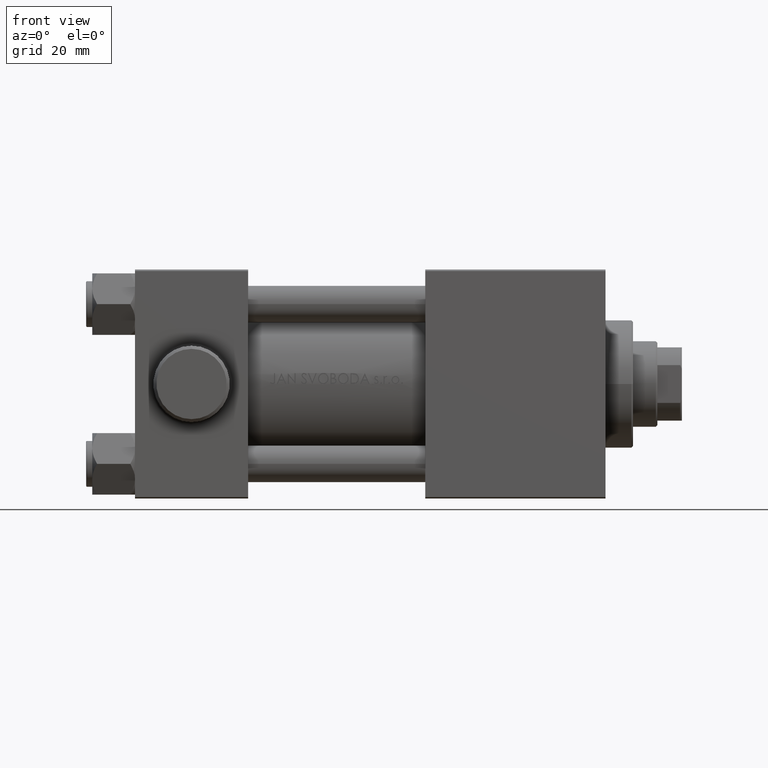
[diagram: clean part render]
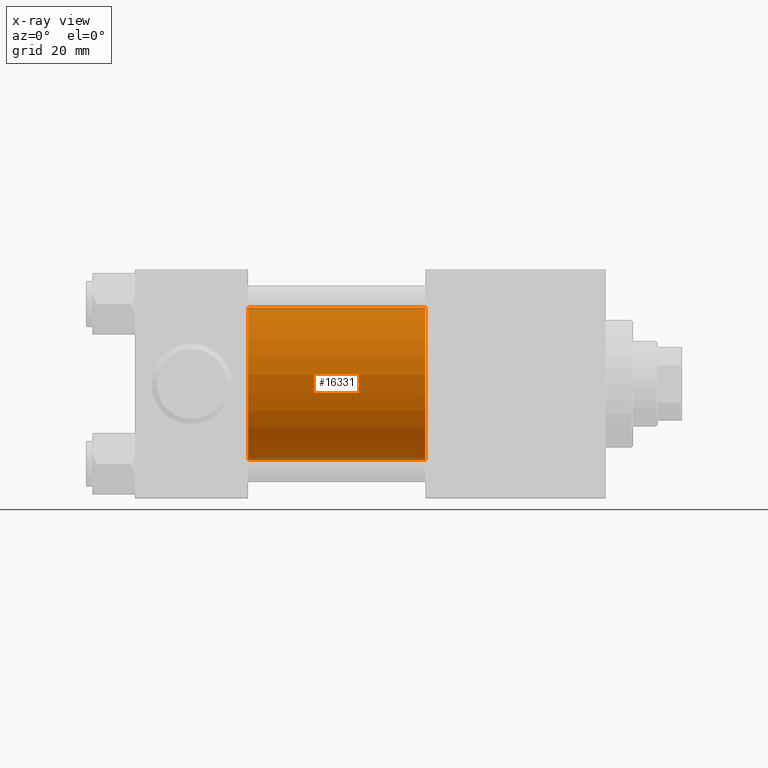
[diagram: x-ray — body ghosted, one internal face saturated and labeled with its STEP entity id]
A machine part, front view, then the same camera in x-ray: the body is ghosted and one INTERNAL B-rep face — a face not visible from any outside direction — is saturated and labeled: STEP entity #16331.
In plain terms, the highlighted cylindrical surface (partial cylindrical patch) has radius 25 mm, axis along (-1, -0, -0).
Its self-contained STEP definition (entity closure, byte-faithful):
#703 = ORIENTED_EDGE ( 'NONE', *, *, #44233, .T. ) ;
#1523 = VERTEX_POINT ( 'NONE', #28815 ) ;
#2159 = ORIENTED_EDGE ( 'NONE', *, *, #23351, .T. ) ;
#3514 = DIRECTION ( 'NONE',  ( -1.000000000000000000, -0.000000000000000000, -0.000000000000000000 ) ) ;
#4877 = CARTESIAN_POINT ( 'NONE',  ( 37.00000000000000000, -3.469446951953614189E-15, 0.000000000000000000 ) ) ;
#5646 = CARTESIAN_POINT ( 'NONE',  ( 95.00000000000000000, -3.469446951953614189E-15, 25.00000000000000000 ) ) ;
#7779 = CARTESIAN_POINT ( 'NONE',  ( 95.00000000000000000, -3.469446951953614189E-15, 0.000000000000000000 ) ) ;
#7964 = CARTESIAN_POINT ( 'NONE',  ( 95.00000000000000000, -3.469446951953614189E-15, 0.000000000000000000 ) ) ;
#8915 = VECTOR ( 'NONE', #3514, 1000.000000000000000 ) ;
#9564 = ORIENTED_EDGE ( 'NONE', *, *, #17824, .F. ) ;
#12575 = DIRECTION ( 'NONE',  ( 1.000000000000000000, 0.000000000000000000, 0.000000000000000000 ) ) ;
#13205 = CARTESIAN_POINT ( 'NONE',  ( 37.00000000000000000, -3.469446951953614189E-15, 25.00000000000000000 ) ) ;
#16331 = ADVANCED_FACE ( 'NONE', ( #22455 ), #32514, .F. ) ;
#17137 = VERTEX_POINT ( 'NONE', #13205 ) ;
#17824 = EDGE_CURVE ( 'NONE', #17137, #1523, #37978, .T. ) ;
#17851 = DIRECTION ( 'NONE',  ( 1.000000000000000000, 0.000000000000000000, 0.000000000000000000 ) ) ;
#18387 = ORIENTED_EDGE ( 'NONE', *, *, #19613, .F. ) ;
#19613 = EDGE_CURVE ( 'NONE', #34180, #17137, #45871, .T. ) ;
#20205 = VECTOR ( 'NONE', #40446, 1000.000000000000000 ) ;
#20371 = CIRCLE ( 'NONE', #26338, 25.00000000000000000 ) ;
#22455 = FACE_OUTER_BOUND ( 'NONE', #43987, .T. ) ;
#23351 = EDGE_CURVE ( 'NONE', #45735, #1523, #30375, .T. ) ;
#24564 = CARTESIAN_POINT ( 'NONE',  ( 95.00000000000000000, -3.469446951953614189E-15, 25.00000000000000000 ) ) ;
#26338 = AXIS2_PLACEMENT_3D ( 'NONE', #7779, #17851, #28610 ) ;
#28474 = CARTESIAN_POINT ( 'NONE',  ( 95.00000000000000000, -4.078299540852317872E-16, -25.00000000000000000 ) ) ;
#28610 = DIRECTION ( 'NONE',  ( 0.000000000000000000, 0.000000000000000000, -1.000000000000000000 ) ) ;
#28815 = CARTESIAN_POINT ( 'NONE',  ( 37.00000000000000000, -4.078299540852317872E-16, -25.00000000000000000 ) ) ;
#30375 = LINE ( 'NONE', #33653, #20205 ) ;
#32514 = CYLINDRICAL_SURFACE ( 'NONE', #40927, 25.00000000000000000 ) ;
#32735 = DIRECTION ( 'NONE',  ( -1.000000000000000000, -0.000000000000000000, -0.000000000000000000 ) ) ;
#33429 = DIRECTION ( 'NONE',  ( 0.000000000000000000, 0.000000000000000000, 1.000000000000000000 ) ) ;
#33653 = CARTESIAN_POINT ( 'NONE',  ( 95.00000000000000000, -4.078299540852317872E-16, -25.00000000000000000 ) ) ;
#34180 = VERTEX_POINT ( 'NONE', #5646 ) ;
#37978 = CIRCLE ( 'NONE', #39487, 25.00000000000000000 ) ;
#39487 = AXIS2_PLACEMENT_3D ( 'NONE', #4877, #12575, #40867 ) ;
#40446 = DIRECTION ( 'NONE',  ( -1.000000000000000000, -0.000000000000000000, -0.000000000000000000 ) ) ;
#40867 = DIRECTION ( 'NONE',  ( 0.000000000000000000, 0.000000000000000000, -1.000000000000000000 ) ) ;
#40927 = AXIS2_PLACEMENT_3D ( 'NONE', #7964, #32735, #33429 ) ;
#43987 = EDGE_LOOP ( 'NONE', ( #703, #2159, #9564, #18387 ) ) ;
#44233 = EDGE_CURVE ( 'NONE', #34180, #45735, #20371, .T. ) ;
#45735 = VERTEX_POINT ( 'NONE', #28474 ) ;
#45871 = LINE ( 'NONE', #24564, #8915 ) ;